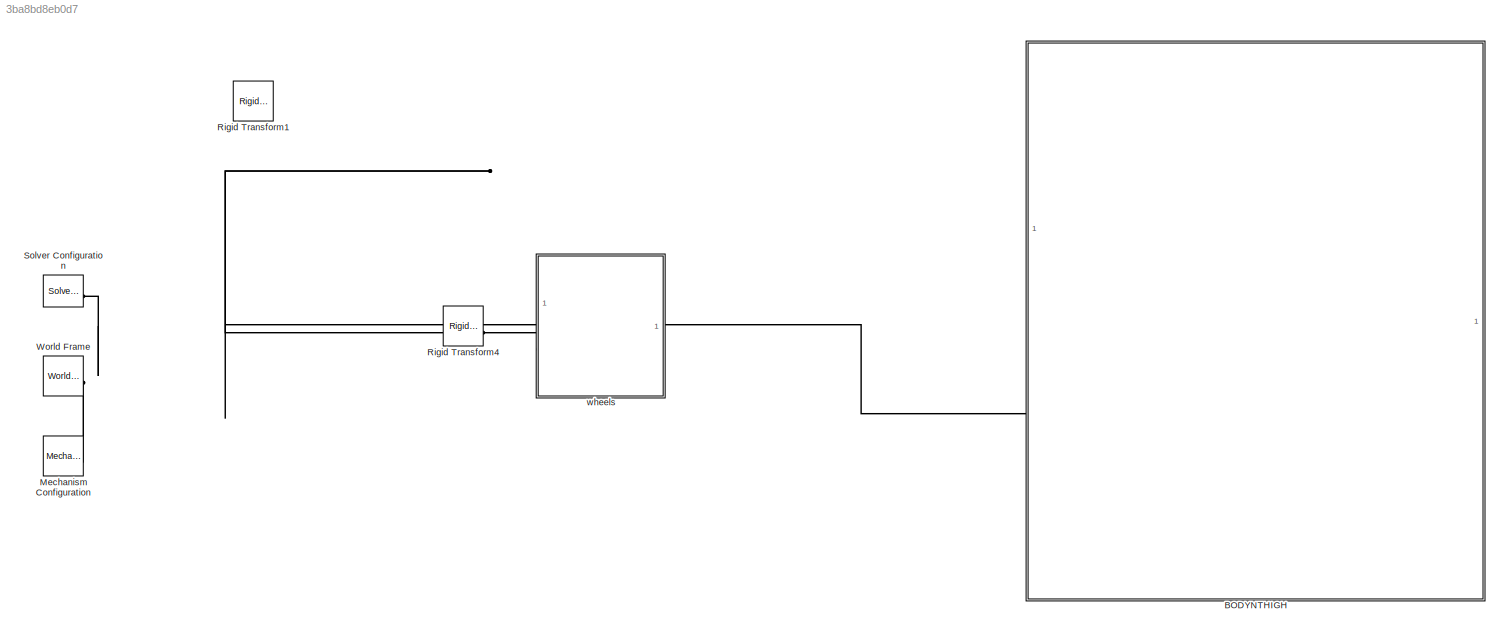
MODEL slx_3ba8bd8eb0d7
KIND model
CONFIG AbsTol = 1e-3
CONFIG EnableMultiTasking = on
CONFIG FixedStep = auto
CONFIG MaxStep = auto
CONFIG MinStep = auto
CONFIG RelTol = 1e-3
CONFIG SampleTimeConstraint = Unconstrained
CONFIG SolverName = VariableStepAuto
CONFIG StartTime = 0.0
CONFIG StopTime = 10.0
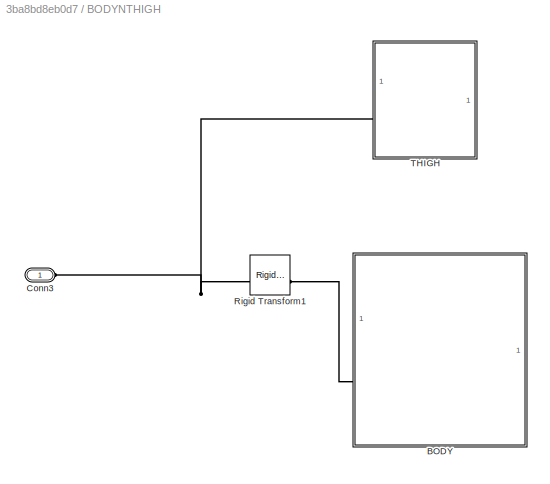
BLOCK [SubSystem] BODYNTHIGH
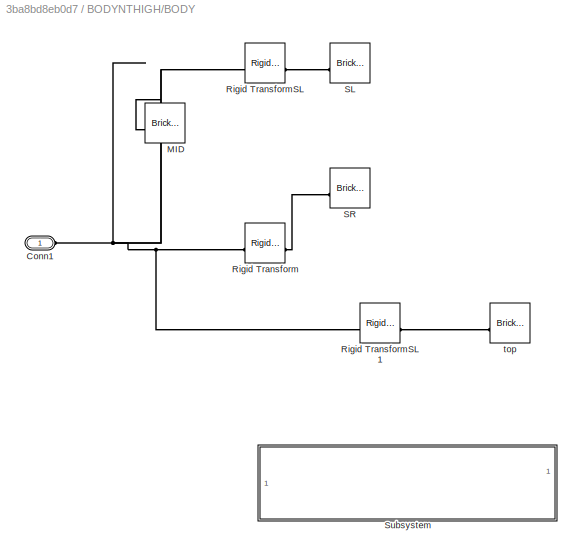
BLOCK [SubSystem] BODYNTHIGH/BODY
BLOCK [PMIOPort] BODYNTHIGH/BODY/Conn1
  Side = Left
BLOCK [Reference] BODYNTHIGH/BODY/MID  REF=sm_lib/Body Elements/Brick Solid
  SourceBlock = sm_lib/Body Elements/Brick Solid
  SourceType = Brick Solid
BLOCK [Reference] BODYNTHIGH/BODY/Rigid Transform  REF=sm_lib/Frames and
Transforms/Rigid
Transform
  SourceBlock = sm_lib/Frames and\nTransforms/Rigid\nTransform
  SourceType = Rigid\nTransform
BLOCK [Reference] BODYNTHIGH/BODY/Rigid TransformSL  REF=sm_lib/Frames and
Transforms/Rigid
Transform
  SourceBlock = sm_lib/Frames and\nTransforms/Rigid\nTransform
  SourceType = Rigid\nTransform
BLOCK [Reference] BODYNTHIGH/BODY/Rigid TransformSL1  REF=sm_lib/Frames and
Transforms/Rigid
Transform
  SourceBlock = sm_lib/Frames and\nTransforms/Rigid\nTransform
  SourceType = Rigid\nTransform
BLOCK [Reference] BODYNTHIGH/BODY/SL  REF=sm_lib/Body Elements/Brick Solid
  SourceBlock = sm_lib/Body Elements/Brick Solid
  SourceType = Brick Solid
BLOCK [Reference] BODYNTHIGH/BODY/SR  REF=sm_lib/Body Elements/Brick Solid
  SourceBlock = sm_lib/Body Elements/Brick Solid
  SourceType = Brick Solid
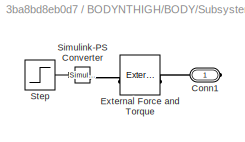
BLOCK [SubSystem] BODYNTHIGH/BODY/Subsystem
  Commented = on
BLOCK [PMIOPort] BODYNTHIGH/BODY/Subsystem/Conn1
  Side = Right
BLOCK [Reference] BODYNTHIGH/BODY/Subsystem/External Force and Torque  REF=sm_lib/Forces and
Torques/External Force
and Torque
  SourceBlock = sm_lib/Forces and\nTorques/External Force\nand Torque
  SourceType = External Force\nand Torque
BLOCK [Reference] BODYNTHIGH/BODY/Subsystem/Simulink-PS Converter  REF=nesl_utility/Simulink-PS
Converter
  SourceBlock = nesl_utility/Simulink-PS\nConverter
  SourceType = Simulink-PS\nConverter
BLOCK [Step] BODYNTHIGH/BODY/Subsystem/Step
  After = 0
  Before = 10
  SampleTime = 0
  Time = 0.01
BLOCK [Reference] BODYNTHIGH/BODY/top  REF=sm_lib/Body Elements/Brick Solid
  SourceBlock = sm_lib/Body Elements/Brick Solid
  SourceType = Brick Solid
BLOCK [PMIOPort] BODYNTHIGH/Conn3
  Side = Left
BLOCK [Reference] BODYNTHIGH/Rigid Transform1  REF=sm_lib/Frames and
Transforms/Rigid
Transform
  SourceBlock = sm_lib/Frames and\nTransforms/Rigid\nTransform
  SourceType = Rigid\nTransform
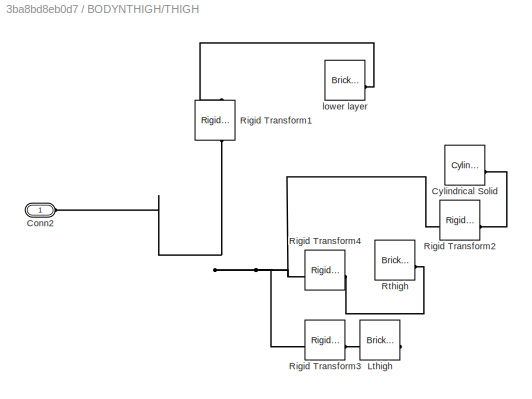
BLOCK [SubSystem] BODYNTHIGH/THIGH
BLOCK [PMIOPort] BODYNTHIGH/THIGH/Conn2
  Side = Left
BLOCK [Reference] BODYNTHIGH/THIGH/Cylindrical Solid  REF=sm_lib/Body Elements/Cylindrical Solid
  SourceBlock = sm_lib/Body Elements/Cylindrical Solid
  SourceType = Cylindrical Solid
BLOCK [Reference] BODYNTHIGH/THIGH/Lthigh  REF=sm_lib/Body Elements/Brick Solid
  SourceBlock = sm_lib/Body Elements/Brick Solid
  SourceType = Brick Solid
BLOCK [Reference] BODYNTHIGH/THIGH/Rigid Transform1  REF=sm_lib/Frames and
Transforms/Rigid
Transform
  NameLocation = right
  SourceBlock = sm_lib/Frames and\nTransforms/Rigid\nTransform
  SourceType = Rigid\nTransform
BLOCK [Reference] BODYNTHIGH/THIGH/Rigid Transform2  REF=sm_lib/Frames and
Transforms/Rigid
Transform
  SourceBlock = sm_lib/Frames and\nTransforms/Rigid\nTransform
  SourceType = Rigid\nTransform
BLOCK [Reference] BODYNTHIGH/THIGH/Rigid Transform3  REF=sm_lib/Frames and
Transforms/Rigid
Transform
  SourceBlock = sm_lib/Frames and\nTransforms/Rigid\nTransform
  SourceType = Rigid\nTransform
BLOCK [Reference] BODYNTHIGH/THIGH/Rigid Transform4  REF=sm_lib/Frames and
Transforms/Rigid
Transform
  SourceBlock = sm_lib/Frames and\nTransforms/Rigid\nTransform
  SourceType = Rigid\nTransform
BLOCK [Reference] BODYNTHIGH/THIGH/Rthigh  REF=sm_lib/Body Elements/Brick Solid
  SourceBlock = sm_lib/Body Elements/Brick Solid
  SourceType = Brick Solid
BLOCK [Reference] BODYNTHIGH/THIGH/lower layer  REF=sm_lib/Body Elements/Brick Solid
  SourceBlock = sm_lib/Body Elements/Brick Solid
  SourceType = Brick Solid
BLOCK [Reference] Mechanism Configuration  REF=sm_lib/Utilities/Mechanism
Configuration
  SourceBlock = sm_lib/Utilities/Mechanism\nConfiguration
  SourceType = Mechanism\nConfiguration
BLOCK [Reference] Rigid Transform1  REF=sm_lib/Frames and
Transforms/Rigid
Transform
  SourceBlock = sm_lib/Frames and\nTransforms/Rigid\nTransform
  SourceType = Rigid\nTransform
BLOCK [Reference] Rigid Transform4  REF=sm_lib/Frames and
Transforms/Rigid
Transform
  SourceBlock = sm_lib/Frames and\nTransforms/Rigid\nTransform
  SourceType = Rigid\nTransform
BLOCK [Reference] Solver Configuration  REF=nesl_utility/Solver
Configuration
  SourceBlock = nesl_utility/Solver\nConfiguration
  SourceType = Solver\nConfiguration
BLOCK [Reference] World Frame  REF=sm_lib/Frames and
Transforms/World Frame
  SourceBlock = sm_lib/Frames and\nTransforms/World Frame
  SourceType = World Frame
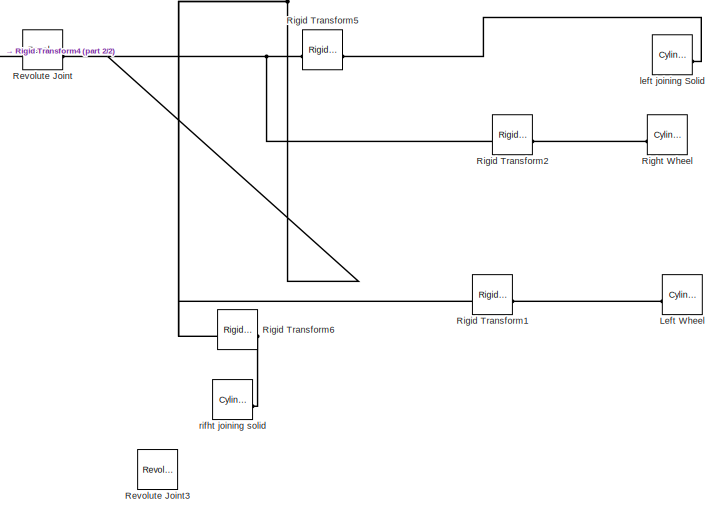
[diagram: wheels - part 1/2, right side, full height]
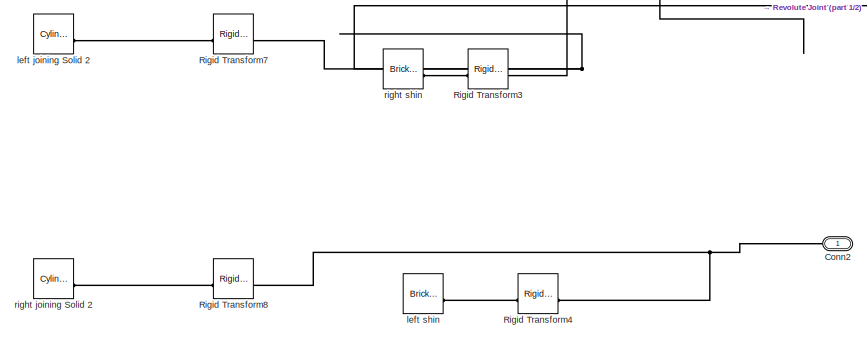
[diagram: wheels - part 2/2, middle left region]
BLOCK [SubSystem] wheels
BLOCK [PMIOPort] wheels/Conn2
  Side = Left
BLOCK [Reference] wheels/Left Wheel  REF=sm_lib/Body Elements/Cylindrical Solid
  SourceBlock = sm_lib/Body Elements/Cylindrical Solid
  SourceType = Cylindrical Solid
BLOCK [Reference] wheels/Revolute Joint  REF=sm_lib/Joints/Revolute Joint
  SourceBlock = sm_lib/Joints/Revolute Joint
  SourceType = Revolute Joint
BLOCK [Reference] wheels/Revolute Joint3  REF=sm_lib/Joints/Revolute Joint
  SourceBlock = sm_lib/Joints/Revolute Joint
  SourceType = Revolute Joint
BLOCK [Reference] wheels/Right Wheel  REF=sm_lib/Body Elements/Cylindrical Solid
  SourceBlock = sm_lib/Body Elements/Cylindrical Solid
  SourceType = Cylindrical Solid
BLOCK [Reference] wheels/Rigid Transform1  REF=sm_lib/Frames and
Transforms/Rigid
Transform
  SourceBlock = sm_lib/Frames and\nTransforms/Rigid\nTransform
  SourceType = Rigid\nTransform
BLOCK [Reference] wheels/Rigid Transform2  REF=sm_lib/Frames and
Transforms/Rigid
Transform
  SourceBlock = sm_lib/Frames and\nTransforms/Rigid\nTransform
  SourceType = Rigid\nTransform
BLOCK [Reference] wheels/Rigid Transform3  REF=sm_lib/Frames and
Transforms/Rigid
Transform
  SourceBlock = sm_lib/Frames and\nTransforms/Rigid\nTransform
  SourceType = Rigid\nTransform
BLOCK [Reference] wheels/Rigid Transform4  REF=sm_lib/Frames and
Transforms/Rigid
Transform
  SourceBlock = sm_lib/Frames and\nTransforms/Rigid\nTransform
  SourceType = Rigid\nTransform
BLOCK [Reference] wheels/Rigid Transform5  REF=sm_lib/Frames and
Transforms/Rigid
Transform
  SourceBlock = sm_lib/Frames and\nTransforms/Rigid\nTransform
  SourceType = Rigid\nTransform
BLOCK [Reference] wheels/Rigid Transform6  REF=sm_lib/Frames and
Transforms/Rigid
Transform
  SourceBlock = sm_lib/Frames and\nTransforms/Rigid\nTransform
  SourceType = Rigid\nTransform
BLOCK [Reference] wheels/Rigid Transform7  REF=sm_lib/Frames and
Transforms/Rigid
Transform
  SourceBlock = sm_lib/Frames and\nTransforms/Rigid\nTransform
  SourceType = Rigid\nTransform
BLOCK [Reference] wheels/Rigid Transform8  REF=sm_lib/Frames and
Transforms/Rigid
Transform
  SourceBlock = sm_lib/Frames and\nTransforms/Rigid\nTransform
  SourceType = Rigid\nTransform
BLOCK [Reference] wheels/left joining Solid  REF=sm_lib/Body Elements/Cylindrical Solid
  SourceBlock = sm_lib/Body Elements/Cylindrical Solid
  SourceType = Cylindrical Solid
BLOCK [Reference] wheels/left joining Solid 2  REF=sm_lib/Body Elements/Cylindrical Solid
  SourceBlock = sm_lib/Body Elements/Cylindrical Solid
  SourceType = Cylindrical Solid
BLOCK [Reference] wheels/left shin  REF=sm_lib/Body Elements/Brick Solid
  SourceBlock = sm_lib/Body Elements/Brick Solid
  SourceType = Brick Solid
BLOCK [Reference] wheels/rifht joining solid  REF=sm_lib/Body Elements/Cylindrical Solid
  SourceBlock = sm_lib/Body Elements/Cylindrical Solid
  SourceType = Cylindrical Solid
BLOCK [Reference] wheels/right  joining Solid 2  REF=sm_lib/Body Elements/Cylindrical Solid
  SourceBlock = sm_lib/Body Elements/Cylindrical Solid
  SourceType = Cylindrical Solid
BLOCK [Reference] wheels/right shin  REF=sm_lib/Body Elements/Brick Solid
  SourceBlock = sm_lib/Body Elements/Brick Solid
  SourceType = Brick Solid
LINE BODYNTHIGH/BODY/Subsystem/Step:1 -> BODYNTHIGH/BODY/Subsystem/Simulink-PS Converter:1
PNET net1: BODYNTHIGH/BODY/Conn1:RConn1 -- BODYNTHIGH/BODY/MID:RConn1 -- BODYNTHIGH/BODY/Rigid Transform:LConn1 -- BODYNTHIGH/BODY/Rigid TransformSL1:LConn1 -- BODYNTHIGH/BODY/Rigid TransformSL:LConn1
PLINE BODYNTHIGH/BODY/Rigid Transform:RConn1 -- BODYNTHIGH/BODY/SR:RConn1
PLINE BODYNTHIGH/BODY/Rigid TransformSL1:RConn1 -- BODYNTHIGH/BODY/top:RConn1
PLINE BODYNTHIGH/BODY/Rigid TransformSL:RConn1 -- BODYNTHIGH/BODY/SL:RConn1
PLINE BODYNTHIGH/BODY/Subsystem/Conn1:RConn1 -- BODYNTHIGH/BODY/Subsystem/External Force and Torque:RConn1
PLINE BODYNTHIGH/BODY/Subsystem/External Force and Torque:LConn1 -- BODYNTHIGH/BODY/Subsystem/Simulink-PS Converter:RConn1
PLINE BODYNTHIGH/BODY:LConn1 -- BODYNTHIGH/Rigid Transform1:RConn1
PNET net2: BODYNTHIGH/Conn3:RConn1 -- BODYNTHIGH/Rigid Transform1:LConn1 -- BODYNTHIGH/THIGH:LConn1
PNET net3: BODYNTHIGH/THIGH/Conn2:RConn1 -- BODYNTHIGH/THIGH/Rigid Transform1:RConn1 -- BODYNTHIGH/THIGH/Rigid Transform2:LConn1 -- BODYNTHIGH/THIGH/Rigid Transform3:LConn1 -- BODYNTHIGH/THIGH/Rigid Transform4:LConn1
PLINE BODYNTHIGH/THIGH/Cylindrical Solid:RConn1 -- BODYNTHIGH/THIGH/Rigid Transform2:RConn1
PLINE BODYNTHIGH/THIGH/Lthigh:RConn1 -- BODYNTHIGH/THIGH/Rigid Transform3:RConn1
PLINE BODYNTHIGH/THIGH/Rigid Transform1:LConn1 -- BODYNTHIGH/THIGH/lower layer:RConn1
PLINE BODYNTHIGH/THIGH/Rigid Transform4:RConn1 -- BODYNTHIGH/THIGH/Rthigh:RConn1
PNET net4: BODYNTHIGH:LConn1 -- Mechanism Configuration:RConn1 -- Rigid Transform4:LConn1 -- Solver Configuration:RConn1 -- World Frame:RConn1
PLINE Rigid Transform4:RConn1 -- wheels:LConn1
PNET net5: wheels/Conn2:RConn1 -- wheels/Revolute Joint:LConn1 -- wheels/Rigid Transform3:RConn1 -- wheels/Rigid Transform4:RConn1 -- wheels/Rigid Transform7:RConn1 -- wheels/Rigid Transform8:RConn1
PLINE wheels/Left Wheel:RConn1 -- wheels/Rigid Transform1:RConn1
PNET net6: wheels/Revolute Joint:RConn1 -- wheels/Rigid Transform1:LConn1 -- wheels/Rigid Transform2:LConn1 -- wheels/Rigid Transform5:LConn1 -- wheels/Rigid Transform6:LConn1
PLINE wheels/Right Wheel:RConn1 -- wheels/Rigid Transform2:RConn1
PLINE wheels/Rigid Transform3:LConn1 -- wheels/right shin:RConn1
PLINE wheels/Rigid Transform4:LConn1 -- wheels/left shin:RConn1
PLINE wheels/Rigid Transform5:RConn1 -- wheels/left joining Solid:RConn1
PLINE wheels/Rigid Transform6:RConn1 -- wheels/rifht joining solid:RConn1
PLINE wheels/Rigid Transform7:LConn1 -- wheels/left joining Solid 2:RConn1
PLINE wheels/Rigid Transform8:LConn1 -- wheels/right  joining Solid 2:RConn1
note: PNET lines group multi-terminal physical nets as a canonical sorted terminal list (undirected conserving connections); 2-terminal nets keep the pairwise PLINE form
